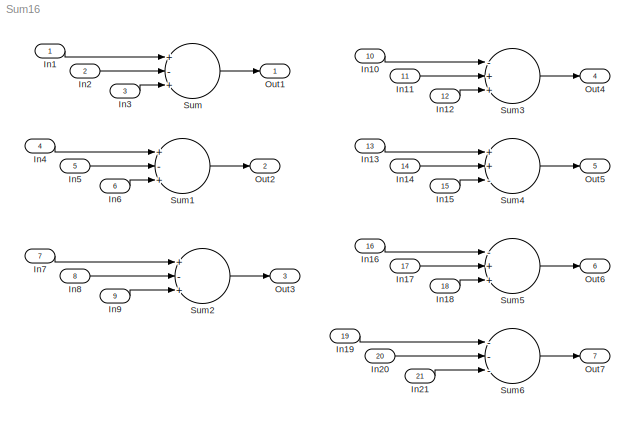
MODEL Sum16
KIND model
BLOCK [Inport] In1
  IconDisplay = Port number
  SID = 1
BLOCK [Inport] In10
  IconDisplay = Port number
  Port = 10
  PortDimensions = 1
  SID = 10
BLOCK [Inport] In11
  IconDisplay = Port number
  Port = 11
  PortDimensions = 3
  SID = 11
BLOCK [Inport] In12
  IconDisplay = Port number
  Port = 12
  PortDimensions = 1
  SID = 12
BLOCK [Inport] In13
  IconDisplay = Port number
  Port = 13
  PortDimensions = 3
  SID = 13
BLOCK [Inport] In14
  IconDisplay = Port number
  Port = 14
  PortDimensions = 1
  SID = 14
BLOCK [Inport] In15
  IconDisplay = Port number
  Port = 15
  PortDimensions = 3
  SID = 15
BLOCK [Inport] In16
  IconDisplay = Port number
  Port = 16
  PortDimensions = 1
  SID = 16
BLOCK [Inport] In17
  IconDisplay = Port number
  Port = 17
  PortDimensions = [2 3]
  SID = 17
BLOCK [Inport] In18
  IconDisplay = Port number
  Port = 18
  PortDimensions = 1
  SID = 18
BLOCK [Inport] In19
  IconDisplay = Port number
  Port = 19
  PortDimensions = [2 3]
  SID = 19
BLOCK [Inport] In2
  IconDisplay = Port number
  Port = 2
  SID = 2
BLOCK [Inport] In20
  IconDisplay = Port number
  Port = 20
  PortDimensions = 1
  SID = 20
BLOCK [Inport] In21
  IconDisplay = Port number
  Port = 21
  PortDimensions = [2 3]
  SID = 21
BLOCK [Inport] In3
  IconDisplay = Port number
  Port = 3
  SID = 3
BLOCK [Inport] In4
  IconDisplay = Port number
  Port = 4
  PortDimensions = 3
  SID = 4
BLOCK [Inport] In5
  IconDisplay = Port number
  Port = 5
  PortDimensions = 3
  SID = 5
BLOCK [Inport] In6
  IconDisplay = Port number
  Port = 6
  PortDimensions = 3
  SID = 6
BLOCK [Inport] In7
  IconDisplay = Port number
  Port = 7
  PortDimensions = [2 3]
  SID = 7
BLOCK [Inport] In8
  IconDisplay = Port number
  Port = 8
  PortDimensions = [2 3]
  SID = 8
BLOCK [Inport] In9
  IconDisplay = Port number
  Port = 9
  PortDimensions = [2 3]
  SID = 9
BLOCK [Outport] Out1
  IconDisplay = Port number
  SID = 29
BLOCK [Outport] Out2
  IconDisplay = Port number
  Port = 2
  SID = 30
BLOCK [Outport] Out3
  IconDisplay = Port number
  Port = 3
  SID = 31
BLOCK [Outport] Out4
  IconDisplay = Port number
  Port = 4
  SID = 32
BLOCK [Outport] Out5
  IconDisplay = Port number
  Port = 5
  SID = 33
BLOCK [Outport] Out6
  IconDisplay = Port number
  Port = 6
  SID = 34
BLOCK [Outport] Out7
  IconDisplay = Port number
  Port = 7
  SID = 35
BLOCK [Sum] Sum
  InputSameDT = off
  Inputs = +-+
  OutDataTypeStr = Inherit: Inherit via internal rule
  Ports = [3, 1]
  SID = 22
  SaturateOnIntegerOverflow = off
BLOCK [Sum] Sum1
  InputSameDT = off
  Inputs = +-+
  OutDataTypeStr = Inherit: Inherit via internal rule
  Ports = [3, 1]
  SID = 23
  SaturateOnIntegerOverflow = off
BLOCK [Sum] Sum2
  InputSameDT = off
  Inputs = +-+
  OutDataTypeStr = Inherit: Inherit via internal rule
  Ports = [3, 1]
  SID = 24
  SaturateOnIntegerOverflow = off
BLOCK [Sum] Sum3
  InputSameDT = off
  Inputs = -++
  OutDataTypeStr = Inherit: Inherit via internal rule
  Ports = [3, 1]
  SID = 25
  SaturateOnIntegerOverflow = off
BLOCK [Sum] Sum4
  InputSameDT = off
  Inputs = ++-
  OutDataTypeStr = Inherit: Inherit via internal rule
  Ports = [3, 1]
  SID = 26
  SaturateOnIntegerOverflow = off
BLOCK [Sum] Sum5
  InputSameDT = off
  Inputs = -++
  OutDataTypeStr = Inherit: Inherit via internal rule
  Ports = [3, 1]
  SID = 27
  SaturateOnIntegerOverflow = off
BLOCK [Sum] Sum6
  InputSameDT = off
  Inputs = ---
  OutDataTypeStr = Inherit: Inherit via internal rule
  Ports = [3, 1]
  SID = 28
  SaturateOnIntegerOverflow = off
LINE In10:1 -> Sum3:1
LINE In11:1 -> Sum3:2
LINE In12:1 -> Sum3:3
LINE In13:1 -> Sum4:1
LINE In14:1 -> Sum4:2
LINE In15:1 -> Sum4:3
LINE In16:1 -> Sum5:1
LINE In17:1 -> Sum5:2
LINE In18:1 -> Sum5:3
LINE In19:1 -> Sum6:1
LINE In1:1 -> Sum:1
LINE In20:1 -> Sum6:2
LINE In21:1 -> Sum6:3
LINE In2:1 -> Sum:2
LINE In3:1 -> Sum:3
LINE In4:1 -> Sum1:1
LINE In5:1 -> Sum1:2
LINE In6:1 -> Sum1:3
LINE In7:1 -> Sum2:1
LINE In8:1 -> Sum2:2
LINE In9:1 -> Sum2:3
LINE Sum1:1 -> Out2:1
LINE Sum2:1 -> Out3:1
LINE Sum3:1 -> Out4:1
LINE Sum4:1 -> Out5:1
LINE Sum5:1 -> Out6:1
LINE Sum6:1 -> Out7:1
LINE Sum:1 -> Out1:1
